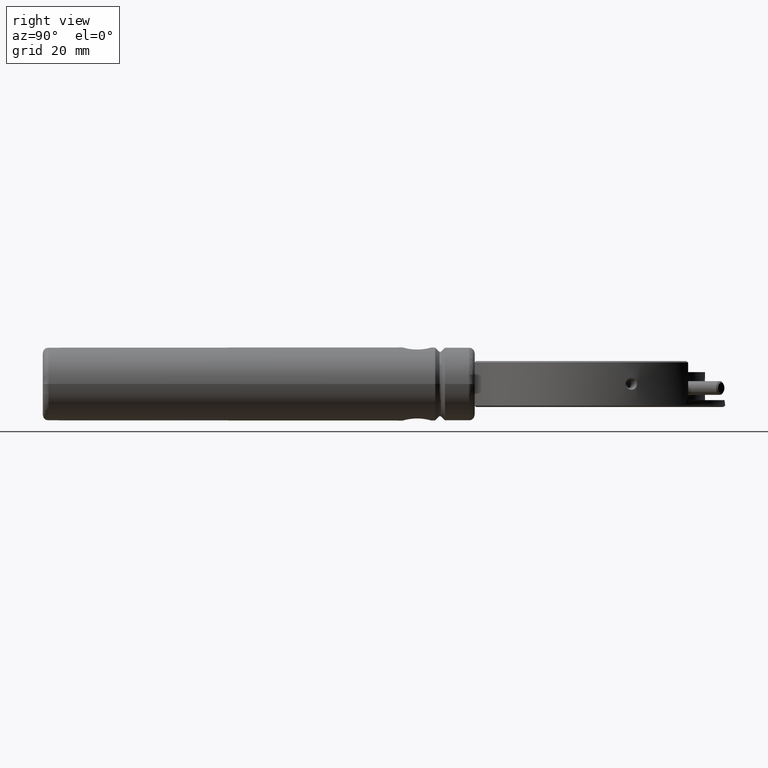
[diagram: clean part render]
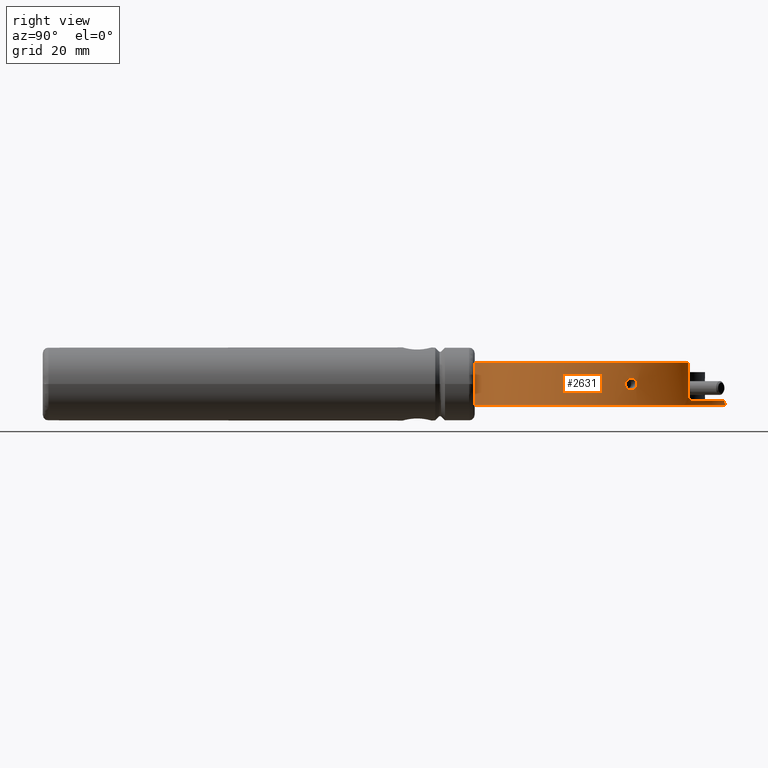
[diagram: same view with one face highlighted and labeled with its STEP entity id]
A machine part, right view. The second image highlights one B-rep face of the part: STEP entity #2631.
In plain terms, the highlighted cylindrical surface (partial cylindrical patch) has radius 22 mm, axis along (-0, -0, -1).
Its self-contained STEP definition (entity closure, byte-faithful):
#14 = LINE ( 'NONE', #5953, #947 ) ;
#59 = CARTESIAN_POINT ( 'NONE',  ( -21.28291614616388117, 64.43197341020230340, 1.002125885650261283 ) ) ;
#68 = VERTEX_POINT ( 'NONE', #270 ) ;
#113 = DIRECTION ( 'NONE',  ( -1.000000000000000000, 0.000000000000000000, 0.000000000000000000 ) ) ;
#121 = CARTESIAN_POINT ( 'NONE',  ( -15.52003871264850865, 74.55634918610398643, 3.749999999999994671 ) ) ;
#124 = EDGE_CURVE ( 'NONE', #1885, #4778, #6790, .T. ) ;
#270 = CARTESIAN_POINT ( 'NONE',  ( 4.699999999999991296, 37.50000000000000000, 3.749999999999992895 ) ) ;
#278 = VECTOR ( 'NONE', #2174, 1000.000000000000000 ) ;
#289 = AXIS2_PLACEMENT_3D ( 'NONE', #3058, #5227, #4685 ) ;
#359 = CARTESIAN_POINT ( 'NONE',  ( 21.48629095761274144, 63.88954112431203924, 0.6357128817185960790 ) ) ;
#438 = CARTESIAN_POINT ( 'NONE',  ( 15.59265965955968092, 74.55634918610398643, -2.049999999999999822 ) ) ;
#454 = CARTESIAN_POINT ( 'NONE',  ( 15.38696860634535568, 74.75950770346760521, -2.649698501230712822 ) ) ;
#467 = EDGE_CURVE ( 'NONE', #4778, #1873, #1405, .T. ) ;
#503 = CARTESIAN_POINT ( 'NONE',  ( 21.25188547074406031, 64.82388212688906037, -1.028672418790825827 ) ) ;
#519 = CARTESIAN_POINT ( 'NONE',  ( -20.92114175718688074, 65.69217423565307001, 0.001097639841569707881 ) ) ;
#545 = VERTEX_POINT ( 'NONE', #5816 ) ;
#593 = CARTESIAN_POINT ( 'NONE',  ( -20.92114175718688074, 65.69217423565307001, 0.001097639841569707881 ) ) ;
#800 = CARTESIAN_POINT ( 'NONE',  ( -20.92114175718688784, 65.69217423565308422, 0.001097639841569734986 ) ) ;
#850 = CIRCLE ( 'NONE', #289, 22.00000000000000000 ) ;
#896 = CARTESIAN_POINT ( 'NONE',  ( 21.41570420552719511, 64.19009711417797348, 0.9006443460325525008 ) ) ;
#926 = CARTESIAN_POINT ( 'NONE',  ( 21.11330063099260101, 65.30634277646404939, 0.8248165072349217253 ) ) ;
#947 = VECTOR ( 'NONE', #3283, 1000.000000000000000 ) ;
#1011 = CARTESIAN_POINT ( 'NONE',  ( -20.96138610448160833, 65.56502298858525535, 0.5215677551538232537 ) ) ;
#1014 = VERTEX_POINT ( 'NONE', #1858 ) ;
#1020 = CARTESIAN_POINT ( 'NONE',  ( 15.12567432486628860, 75.01002528995199725, -2.799999999999999378 ) ) ;
#1046 = CARTESIAN_POINT ( 'NONE',  ( -21.24913446948971085, 64.56309772506460831, 1.028531363236637741 ) ) ;
#1107 = CARTESIAN_POINT ( 'NONE',  ( 21.00225281542463662, 65.66573699797102392, -0.2719837683481589052 ) ) ;
#1176 = CARTESIAN_POINT ( 'NONE',  ( 0.03631047345558670314, 59.00000000000000000, -2.799999999999999378 ) ) ;
#1183 = CARTESIAN_POINT ( 'NONE',  ( -15.45294402024753566, 74.62320101444457521, -2.427834856211732006 ) ) ;
#1244 = DIRECTION ( 'NONE',  ( -1.000000000000000000, 0.000000000000000000, 0.000000000000000000 ) ) ;
#1399 = DIRECTION ( 'NONE',  ( 0.000000000000000000, 0.000000000000000000, -1.000000000000000000 ) ) ;
#1405 = CIRCLE ( 'NONE', #3565, 22.00000000000000000 ) ;
#1511 = CARTESIAN_POINT ( 'NONE',  ( -21.24885749353507691, 64.56415762811086267, -1.028672418790652854 ) ) ;
#1534 = CARTESIAN_POINT ( 'NONE',  ( 21.41614611120229128, 64.18829367798966246, -0.8997166657919131172 ) ) ;
#1547 = CARTESIAN_POINT ( 'NONE',  ( -21.41415402362083498, 63.88743758782014481, 0.6333001689544456303 ) ) ;
#1619 = CARTESIAN_POINT ( 'NONE',  ( -21.45943039882106973, 63.68328136832651865, -0.1377867972805106866 ) ) ;
#1657 = CARTESIAN_POINT ( 'NONE',  ( -21.43073924621976900, 63.81337348913184115, -0.5215660498752811014 ) ) ;
#1674 = DIRECTION ( 'NONE',  ( -0.000000000000000000, -0.000000000000000000, -1.000000000000000000 ) ) ;
#1678 = CARTESIAN_POINT ( 'NONE',  ( 21.44269307855726936, 64.07703261187434407, -0.8248144829861188132 ) ) ;
#1748 = ORIENTED_EDGE ( 'NONE', *, *, #124, .T. ) ;
#1816 = EDGE_CURVE ( 'NONE', #4418, #545, #5460, .T. ) ;
#1858 = CARTESIAN_POINT ( 'NONE',  ( 15.05328722830184063, 75.07763692662597066, -2.799999999999999378 ) ) ;
#1873 = VERTEX_POINT ( 'NONE', #121 ) ;
#1885 = VERTEX_POINT ( 'NONE', #4956 ) ;
#1944 = CARTESIAN_POINT ( 'NONE',  ( -4.627379053088804817, 37.49999999999999289, 3.749999999999992895 ) ) ;
#1954 = CARTESIAN_POINT ( 'NONE',  ( 21.50336062519942715, 63.81337160442479473, 0.5215677551539286139 ) ) ;
#2004 = VERTEX_POINT ( 'NONE', #4019 ) ;
#2008 = CARTESIAN_POINT ( 'NONE',  ( 15.59265965955968092, 74.55634918610398643, -2.049999999999999822 ) ) ;
#2027 = CARTESIAN_POINT ( 'NONE',  ( -15.52003871264850865, 74.55634918610398643, 4.000000000000000000 ) ) ;
#2054 = CARTESIAN_POINT ( 'NONE',  ( 21.03374072760969682, 65.56587347393498533, 0.5200985469441700149 ) ) ;
#2068 = CARTESIAN_POINT ( 'NONE',  ( -20.92962895681608160, 65.66574618673324437, 0.2719547458722603728 ) ) ;
#2108 = CARTESIAN_POINT ( 'NONE',  ( -20.92945158380232584, 65.66630276621852147, -0.2699282631205860428 ) ) ;
#2139 = LINE ( 'NONE', #4316, #278 ) ;
#2168 = CARTESIAN_POINT ( 'NONE',  ( -15.50627416747644993, 74.57014699313748451, -2.246246583853873879 ) ) ;
#2174 = DIRECTION ( 'NONE',  ( 0.000000000000000000, 0.000000000000000000, 1.000000000000000000 ) ) ;
#2203 = CARTESIAN_POINT ( 'NONE',  ( 21.35553744595388892, 64.43197243008766861, -1.002119636205959230 ) ) ;
#2219 = CARTESIAN_POINT ( 'NONE',  ( -21.37003892031641428, 64.07715277076810878, -0.8246344097494410219 ) ) ;
#2259 = EDGE_LOOP ( 'NONE', ( #3243 ) ) ;
#2333 = ORIENTED_EDGE ( 'NONE', *, *, #1816, .T. ) ;
#2369 = EDGE_CURVE ( 'NONE', #2004, #68, #850, .T. ) ;
#2515 = CARTESIAN_POINT ( 'NONE',  ( 21.32147864066781651, 64.56415661275543982, 1.028670580662970790 ) ) ;
#2557 = DIRECTION ( 'NONE',  ( 1.000000000000000000, 0.000000000000000000, 3.942553354492743284E-17 ) ) ;
#2604 = ORIENTED_EDGE ( 'NONE', *, *, #6822, .T. ) ;
#2631 = ADVANCED_FACE ( 'NONE', ( #5369, #4836, #7015 ), #3237, .T. ) ;
#2702 = CARTESIAN_POINT ( 'NONE',  ( 21.48678418243759580, 63.88739747087421250, -0.6332521793348543371 ) ) ;
#2705 = CARTESIAN_POINT ( 'NONE',  ( -15.52003871264851043, 74.55634918610400064, -2.149052275232230080 ) ) ;
#2739 = CARTESIAN_POINT ( 'NONE',  ( 21.53211499987148159, 63.68298919322340623, -0.1355894451334165307 ) ) ;
#2751 = CARTESIAN_POINT ( 'NONE',  ( -21.07383617311710111, 65.19494091704964944, 0.9006443460323851902 ) ) ;
#2783 = AXIS2_PLACEMENT_3D ( 'NONE', #1176, #1674, #113 ) ;
#2813 = EDGE_CURVE ( 'NONE', #545, #1014, #6654, .T. ) ;
#3008 = CARTESIAN_POINT ( 'NONE',  ( 0.03631047345558670314, 59.00000000000000000, 3.749999999999992895 ) ) ;
#3030 = CARTESIAN_POINT ( 'NONE',  ( 21.52621972764326586, 63.71026418224575139, 0.2719547458721450206 ) ) ;
#3058 = CARTESIAN_POINT ( 'NONE',  ( 0.03631047345558670314, 59.00000000000000000, 3.749999999999992895 ) ) ;
#3062 = CARTESIAN_POINT ( 'NONE',  ( 21.35542763605492311, 64.43238693512373061, 1.002122461060350744 ) ) ;
#3072 = EDGE_CURVE ( 'NONE', #1014, #3967, #6310, .T. ) ;
#3092 = CARTESIAN_POINT ( 'NONE',  ( 21.05667644480980982, 65.49258713807574850, 0.6333001689534482059 ) ) ;
#3135 = DIRECTION ( 'NONE',  ( -0.000000000000000000, -0.000000000000000000, -1.000000000000000000 ) ) ;
#3141 = DIRECTION ( 'NONE',  ( -0.000000000000000000, -0.000000000000000000, -1.000000000000000000 ) ) ;
#3142 = CARTESIAN_POINT ( 'NONE',  ( -21.34308288423499533, 64.19009877618218241, -0.9006546157811015085 ) ) ;
#3178 = CARTESIAN_POINT ( 'NONE',  ( -21.17896878406013172, 64.82495935772028872, -1.028529513432913989 ) ) ;
#3220 = AXIS2_PLACEMENT_3D ( 'NONE', #6848, #1399, #2557 ) ;
#3237 = CYLINDRICAL_SURFACE ( 'NONE', #4593, 22.00000000000000000 ) ;
#3241 = CIRCLE ( 'NONE', #3220, 22.00000000000000000 ) ;
#3243 = ORIENTED_EDGE ( 'NONE', *, *, #5948, .T. ) ;
#3283 = DIRECTION ( 'NONE',  ( -0.000000000000000000, -0.000000000000000000, -1.000000000000000000 ) ) ;
#3290 = CARTESIAN_POINT ( 'NONE',  ( -21.04067697162913575, 65.30635208482495102, -0.8248144829865998728 ) ) ;
#3534 = VERTEX_POINT ( 'NONE', #4134 ) ;
#3565 = AXIS2_PLACEMENT_3D ( 'NONE', #3008, #3141, #6853 ) ;
#3675 = CARTESIAN_POINT ( 'NONE',  ( -20.98404341717024124, 65.49262648632179662, -0.6332521793352853257 ) ) ;
#3701 = CARTESIAN_POINT ( 'NONE',  ( 21.32176093770571157, 64.56307684895902810, -1.028529513432772102 ) ) ;
#3714 = CARTESIAN_POINT ( 'NONE',  ( -21.43093427780116755, 63.81250190061564354, 0.5200985469453514032 ) ) ;
#3760 = CARTESIAN_POINT ( 'NONE',  ( 15.59265965955968092, 74.55634918610401485, -2.248104347336843833 ) ) ;
#3826 = CARTESIAN_POINT ( 'NONE',  ( -20.98468809866091078, 65.49052341557577961, 0.6357128817186246117 ) ) ;
#3886 = CARTESIAN_POINT ( 'NONE',  ( -15.41341465493462515, 74.66240003098161537, -2.511006764129476210 ) ) ;
#3946 = EDGE_CURVE ( 'NONE', #1873, #4418, #4135, .T. ) ;
#3967 = VERTEX_POINT ( 'NONE', #438 ) ;
#3971 = ORIENTED_EDGE ( 'NONE', *, *, #2369, .T. ) ;
#3983 = EDGE_CURVE ( 'NONE', #1885, #6806, #3241, .T. ) ;
#3986 = CARTESIAN_POINT ( 'NONE',  ( -15.12544113903116916, 74.94241303260503173, -2.800000000000000266 ) ) ;
#4019 = CARTESIAN_POINT ( 'NONE',  ( 15.59265965955968092, 74.55634918610398643, 3.749999999999992895 ) ) ;
#4134 = CARTESIAN_POINT ( 'NONE',  ( 21.53208362161736389, 63.68313322069393934, 0.001097639841570600613 ) ) ;
#4135 = LINE ( 'NONE', #2027, #5264 ) ;
#4162 = CARTESIAN_POINT ( 'NONE',  ( 21.21528902018444285, 64.95538634389370714, 1.002125885650034576 ) ) ;
#4204 = EDGE_CURVE ( 'NONE', #68, #6806, #14, .T. ) ;
#4246 = CARTESIAN_POINT ( 'NONE',  ( -20.92118659655697499, 65.69203381507765016, 0.1377847248165613991 ) ) ;
#4270 = CARTESIAN_POINT ( 'NONE',  ( 21.03400761956423537, 65.56502114034611850, -0.5215660498766051534 ) ) ;
#4282 = CARTESIAN_POINT ( 'NONE',  ( -21.37006982651788434, 64.07704202937901528, 0.8248165072354521898 ) ) ;
#4293 = CARTESIAN_POINT ( 'NONE',  ( 15.32732459662129010, 74.81749449585406353, -2.705347634042027938 ) ) ;
#4307 = CARTESIAN_POINT ( 'NONE',  ( 21.21540417522815147, 64.95496226864032963, -1.002117251799309328 ) ) ;
#4316 = CARTESIAN_POINT ( 'NONE',  ( 15.59265965955968625, 74.55634918610398643, 4.000000000000000000 ) ) ;
#4320 = CARTESIAN_POINT ( 'NONE',  ( -20.92109691781678649, 65.69231465622848987, -0.1355894451334219986 ) ) ;
#4355 = CARTESIAN_POINT ( 'NONE',  ( -21.34351656068441372, 64.18832870759868570, 0.8997258888143022659 ) ) ;
#4370 = CARTESIAN_POINT ( 'NONE',  ( -15.52003871264850865, 74.55634918610398643, -2.049999999999999822 ) ) ;
#4378 = DIRECTION ( 'NONE',  ( -0.000000000000000000, -0.000000000000000000, -1.000000000000000000 ) ) ;
#4382 = CARTESIAN_POINT ( 'NONE',  ( 21.05731155940236832, 65.49051523151939591, -0.6357238815014020217 ) ) ;
#4418 = VERTEX_POINT ( 'NONE', #4370 ) ;
#4551 = ORIENTED_EDGE ( 'NONE', *, *, #3946, .T. ) ;
#4553 = CARTESIAN_POINT ( 'NONE',  ( -15.26527587454340384, 74.80761146814879226, -2.718548397324435317 ) ) ;
#4592 = ORIENTED_EDGE ( 'NONE', *, *, #467, .T. ) ;
#4593 = AXIS2_PLACEMENT_3D ( 'NONE', #5408, #4378, #1244 ) ;
#4685 = DIRECTION ( 'NONE',  ( -1.000000000000000000, 0.000000000000000000, 0.000000000000000000 ) ) ;
#4689 = CARTESIAN_POINT ( 'NONE',  ( 21.25159538743334053, 64.82493851783199545, 1.028531363236573792 ) ) ;
#4775 = CARTESIAN_POINT ( 'NONE',  ( -21.14266788881847603, 64.95538736913553635, -1.002119636206244113 ) ) ;
#4778 = VERTEX_POINT ( 'NONE', #1944 ) ;
#4824 = ORIENTED_EDGE ( 'NONE', *, *, #3983, .F. ) ;
#4836 = FACE_BOUND ( 'NONE', #2259, .T. ) ;
#4839 = B_SPLINE_CURVE_WITH_KNOTS ( 'NONE', 3,
 ( #593, #4246, #2068, #1011, #3826, #5463, #2751, #6003, #6427, #1046, #59, #4355, #4282, #1547, #3714, #4927, #6536, #1619, #5890, #1657, #6956, #2219, #3142, #5315, #1511, #3178, #4775, #5351, #3290, #3675, #4855, #2108, #4320, #519 ),
 .UNSPECIFIED., .T., .F.,
 ( 4, 2, 2, 2, 2, 2, 2, 2, 2, 2, 2, 2, 2, 2, 2, 2, 4 ),
 ( 0.000000000000000000, 0.0004042468403094685251, 0.0008084936806189370502, 0.001212740520928405575, 0.001616987361237874100, 0.002021234201547342409, 0.002425481041856811151, 0.002829727882166279893, 0.003233974722475748201, 0.003638221562785216509, 0.004042468403094684817, 0.004446715243404153993, 0.004850962083713622301, 0.005255208924023090609, 0.005659455764332559785, 0.006063702604642028093, 0.006467949444951496402 ),
 .UNSPECIFIED. ) ;
#4855 = CARTESIAN_POINT ( 'NONE',  ( -20.96111400423161442, 65.56589190561879832, -0.5200521107428944800 ) ) ;
#4927 = CARTESIAN_POINT ( 'NONE',  ( -21.45372153924749270, 63.70970230978416282, 0.2699493276306994538 ) ) ;
#4956 = CARTESIAN_POINT ( 'NONE',  ( -4.627379053088808369, 37.49999999999999289, -3.749999999999996447 ) ) ;
#5072 = ORIENTED_EDGE ( 'NONE', *, *, #3072, .T. ) ;
#5227 = DIRECTION ( 'NONE',  ( -0.000000000000000000, -0.000000000000000000, -1.000000000000000000 ) ) ;
#5231 = CARTESIAN_POINT ( 'NONE',  ( 21.53208362161736744, 63.68313322069395355, 0.001097639841570670002 ) ) ;
#5241 = EDGE_CURVE ( 'NONE', #3967, #2004, #2139, .T. ) ;
#5264 = VECTOR ( 'NONE', #3135, 1000.000000000000000 ) ;
#5315 = CARTESIAN_POINT ( 'NONE',  ( -21.28280383573096657, 64.43239824766457957, -1.002117251798971154 ) ) ;
#5324 = CARTESIAN_POINT ( 'NONE',  ( 15.05328722830184063, 75.07763692662597066, -2.799999999999999378 ) ) ;
#5351 = CARTESIAN_POINT ( 'NONE',  ( -21.07331715656400206, 65.19672369143926005, -0.8997166657924013933 ) ) ;
#5369 = FACE_OUTER_BOUND ( 'NONE', #6968, .T. ) ;
#5373 = CARTESIAN_POINT ( 'NONE',  ( 21.11332923613215939, 65.30623141850510649, -0.8246344097504688664 ) ) ;
#5408 = CARTESIAN_POINT ( 'NONE',  ( 0.03631047345558670314, 59.00000000000000000, 4.000000000000000000 ) ) ;
#5426 = CARTESIAN_POINT ( 'NONE',  ( 4.699999999999985079, 37.49999999999999289, -3.749999999999998224 ) ) ;
#5460 = B_SPLINE_CURVE_WITH_KNOTS ( 'NONE', 3,
 ( #5951, #2705, #2168, #1183, #3886, #4553, #3986, #6132 ),
 .UNSPECIFIED., .F., .F.,
 ( 4, 2, 2, 4 ),
 ( 0.000000000000000000, 0.0002929392057928881373, 0.0005858784115857762747, 0.001171756823171551682 ),
 .UNSPECIFIED. ) ;
#5463 = CARTESIAN_POINT ( 'NONE',  ( -21.04070748740464225, 65.30623414207207134, 0.8246341956428019371 ) ) ;
#5487 = CARTESIAN_POINT ( 'NONE',  ( 20.99371660198804079, 65.69231861067075329, 0.1355338402244925800 ) ) ;
#5550 = EDGE_LOOP ( 'NONE', ( #2604 ) ) ;
#5615 = VECTOR ( 'NONE', #6145, 1000.000000000000000 ) ;
#5771 = CARTESIAN_POINT ( 'NONE',  ( 21.44266053461747035, 64.07715001118305054, 0.8246341956430880415 ) ) ;
#5816 = CARTESIAN_POINT ( 'NONE',  ( -14.98066628139066658, 75.07763692662597066, -2.799999999999999378 ) ) ;
#5877 = CARTESIAN_POINT ( 'NONE',  ( 21.52634440785013226, 63.70969348376495844, -0.2699282631204173444 ) ) ;
#5890 = CARTESIAN_POINT ( 'NONE',  ( -21.45359670795500406, 63.71027359579553462, -0.2719837683465545219 ) ) ;
#5900 = CARTESIAN_POINT ( 'NONE',  ( 15.53521667580648113, 74.61419415803347022, -2.442304697534446234 ) ) ;
#5913 = CARTESIAN_POINT ( 'NONE',  ( 20.99380882617794342, 65.69202979809706733, -0.1377867972820020770 ) ) ;
#5948 = EDGE_CURVE ( 'NONE', #3534, #3534, #6373, .T. ) ;
#5951 = CARTESIAN_POINT ( 'NONE',  ( -15.52003871264850865, 74.55634918610398643, -2.049999999999999822 ) ) ;
#5953 = CARTESIAN_POINT ( 'NONE',  ( 4.700000000000004619, 37.50000000000000000, 4.000000000000000000 ) ) ;
#5989 = CARTESIAN_POINT ( 'NONE',  ( 21.50355943798732028, 63.81248305007503063, -0.5200521107424448397 ) ) ;
#6003 = CARTESIAN_POINT ( 'NONE',  ( -21.14278004317398896, 64.95497349229626138, 1.002122461060191982 ) ) ;
#6112 = CARTESIAN_POINT ( 'NONE',  ( -4.627379053088803929, 37.49999999999999289, 4.000000000000000000 ) ) ;
#6132 = CARTESIAN_POINT ( 'NONE',  ( -14.98066628139066658, 75.07763692662597066, -2.799999999999999378 ) ) ;
#6145 = DIRECTION ( 'NONE',  ( 0.000000000000000000, 0.000000000000000000, 1.000000000000000000 ) ) ;
#6275 = ORIENTED_EDGE ( 'NONE', *, *, #5241, .T. ) ;
#6310 = B_SPLINE_CURVE_WITH_KNOTS ( 'NONE', 3,
 ( #5324, #1020, #6438, #4293, #454, #5900, #3760, #2008 ),
 .UNSPECIFIED., .F., .F.,
 ( 4, 2, 2, 4 ),
 ( 1.734723475976807094E-18, 0.0002929396253339826566, 0.0005858792506679635784, 0.001171758501335944070 ),
 .UNSPECIFIED. ) ;
#6340 = CARTESIAN_POINT ( 'NONE',  ( 21.14594816733723803, 65.19668905310631146, 0.8997258888139093580 ) ) ;
#6345 = VERTEX_POINT ( 'NONE', #800 ) ;
#6373 = B_SPLINE_CURVE_WITH_KNOTS ( 'NONE', 3,
 ( #5231, #6876, #3030, #1954, #359, #5771, #896, #3062, #2515, #4689, #4162, #6340, #926, #3092, #2054, #6486, #5487, #5913, #1107, #4270, #4382, #5373, #6560, #4307, #503, #3701, #2203, #1534, #1678, #2702, #5989, #5877, #2739, #6451 ),
 .UNSPECIFIED., .T., .F.,
 ( 4, 2, 2, 2, 2, 2, 2, 2, 2, 2, 2, 2, 2, 2, 2, 2, 4 ),
 ( 0.000000000000000000, 0.0004042468403094440221, 0.0008084936806188880443, 0.001212740520928332066, 0.001616987361237775655, 0.002021234201547219677, 0.002425481041856663265, 0.002829727882166107288, 0.003233974722475551310, 0.003638221562784995332, 0.004042468403094439354, 0.004446715243403883376, 0.004850962083713326531, 0.005255208924022771420, 0.005659455764332215442, 0.006063702604641659465, 0.006467949444951102619 ),
 .UNSPECIFIED. ) ;
#6391 = ORIENTED_EDGE ( 'NONE', *, *, #4204, .T. ) ;
#6427 = CARTESIAN_POINT ( 'NONE',  ( -21.17926418955162404, 64.82388310632531159, 1.028670580662899514 ) ) ;
#6438 = CARTESIAN_POINT ( 'NONE',  ( 15.19623645422268865, 74.94317688852784443, -2.780531724459223586 ) ) ;
#6451 = CARTESIAN_POINT ( 'NONE',  ( 21.53208362161736744, 63.68313322069395355, 0.001097639841570670002 ) ) ;
#6486 = CARTESIAN_POINT ( 'NONE',  ( 21.00207527948923669, 65.66629416181658030, 0.2699493276293581379 ) ) ;
#6536 = CARTESIAN_POINT ( 'NONE',  ( -21.45949493661651886, 63.68298513720615972, 0.1355338402259517183 ) ) ;
#6560 = CARTESIAN_POINT ( 'NONE',  ( 21.14645762680739338, 65.19493929051971293, -0.9006546157818847709 ) ) ;
#6654 = CIRCLE ( 'NONE', #2783, 22.00000000000000000 ) ;
#6790 = LINE ( 'NONE', #6112, #5615 ) ;
#6806 = VERTEX_POINT ( 'NONE', #5426 ) ;
#6813 = ORIENTED_EDGE ( 'NONE', *, *, #2813, .T. ) ;
#6822 = EDGE_CURVE ( 'NONE', #6345, #6345, #4839, .T. ) ;
#6848 = CARTESIAN_POINT ( 'NONE',  ( 0.03631047345558670314, 59.00000000000000000, -3.749999999999996447 ) ) ;
#6853 = DIRECTION ( 'NONE',  ( -1.000000000000000000, 0.000000000000000000, 0.000000000000000000 ) ) ;
#6876 = CARTESIAN_POINT ( 'NONE',  ( 21.53205224336325685, 63.68327724816450086, 0.1377847248165581240 ) ) ;
#6956 = CARTESIAN_POINT ( 'NONE',  ( -21.41366809571453445, 63.88954946882670072, -0.6357238815001717835 ) ) ;
#6968 = EDGE_LOOP ( 'NONE', ( #4824, #1748, #4592, #4551, #2333, #6813, #5072, #6275, #3971, #6391 ) ) ;
#7015 = FACE_BOUND ( 'NONE', #5550, .T. ) ;